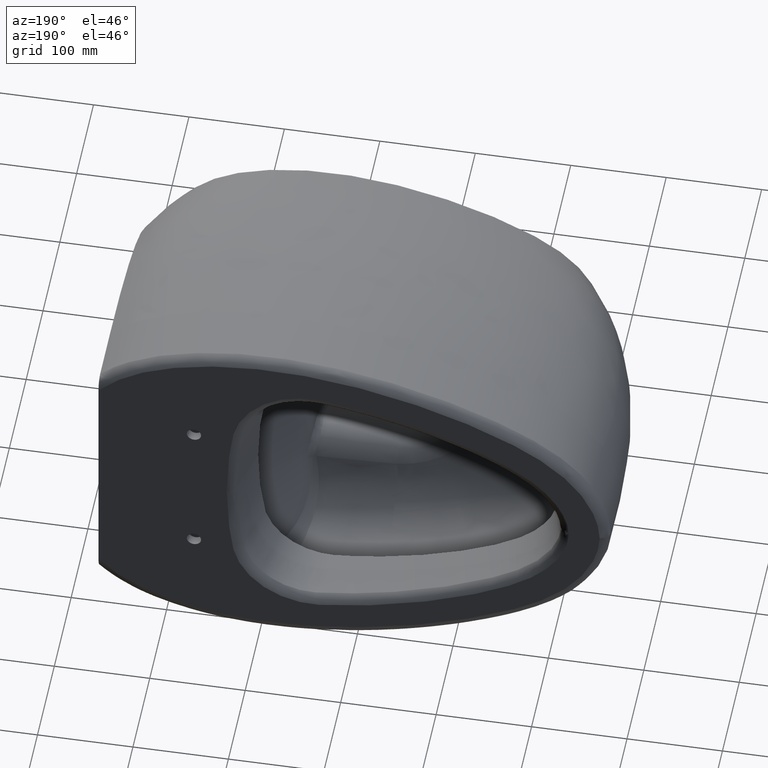
[diagram: clean part render]
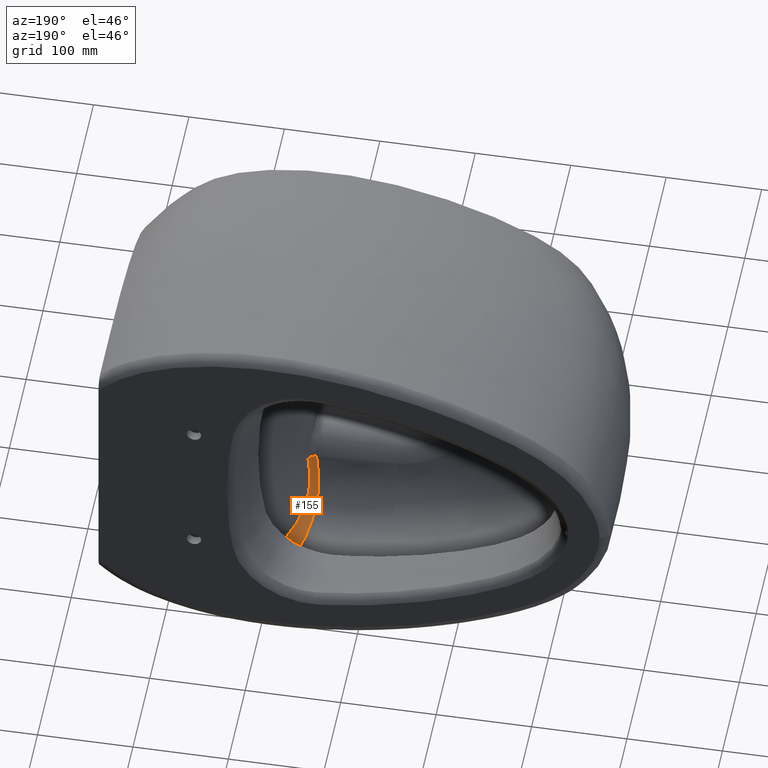
[diagram: same view with one face highlighted and labeled with its STEP entity id]
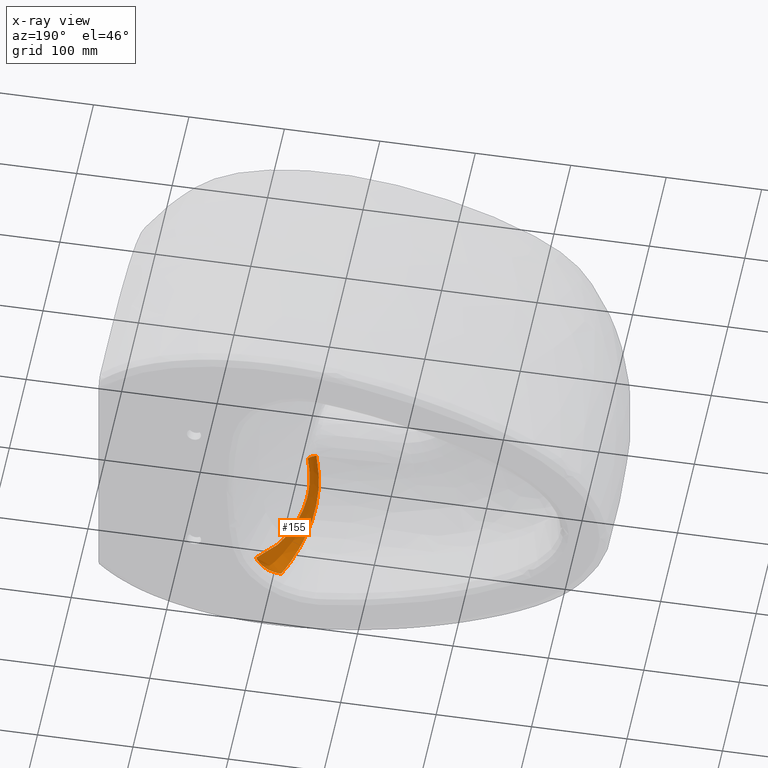
[diagram: x-ray of the same camera — body ghosted, the highlighted face saturated]
A machine part, auxiliary view. The second image highlights one B-rep face of the part: STEP entity #155.
The next image is the same camera in x-ray: the body ghosted, the highlighted face saturated — about 0% of this face is hidden behind the body in this view.
In plain terms, the highlighted face is a freeform B-spline surface patch.
Its self-contained STEP definition (entity closure, byte-faithful):
#56=(
BOUNDED_SURFACE()
B_SPLINE_SURFACE(2,3,((#5914,#5915,#5916,#5917,#5918,#5919,#5920,#5921,
#5922,#5923,#5924,#5925,#5926,#5927,#5928,#5929,#5930,#5931,#5932,#5933,
#5934,#5935,#5936,#5937,#5938,#5939,#5940,#5941,#5942,#5943,#5944,#5945,
#5946,#5947,#5948,#5949,#5950,#5951,#5952,#5953,#5954,#5955,#5956,#5957,
#5958,#5959,#5960,#5961,#5962,#5963,#5964,#5965),(#5966,#5967,#5968,#5969,
#5970,#5971,#5972,#5973,#5974,#5975,#5976,#5977,#5978,#5979,#5980,#5981,
#5982,#5983,#5984,#5985,#5986,#5987,#5988,#5989,#5990,#5991,#5992,#5993,
#5994,#5995,#5996,#5997,#5998,#5999,#6000,#6001,#6002,#6003,#6004,#6005,
#6006,#6007,#6008,#6009,#6010,#6011,#6012,#6013,#6014,#6015,#6016,#6017),
(#6018,#6019,#6020,#6021,#6022,#6023,#6024,#6025,#6026,#6027,#6028,#6029,
#6030,#6031,#6032,#6033,#6034,#6035,#6036,#6037,#6038,#6039,#6040,#6041,
#6042,#6043,#6044,#6045,#6046,#6047,#6048,#6049,#6050,#6051,#6052,#6053,
#6054,#6055,#6056,#6057,#6058,#6059,#6060,#6061,#6062,#6063,#6064,#6065,
#6066,#6067,#6068,#6069)),.UNSPECIFIED.,.F.,.F.,.F.)
B_SPLINE_SURFACE_WITH_KNOTS((3,3),(4,2,2,2,2,2,2,2,2,2,2,2,2,2,2,2,2,2,
2,2,2,2,2,2,2,4),(0.,1.),(0.,0.0624999999999999,0.125,0.1875,0.21875,0.25,
0.3125,0.375,0.5,0.5625,0.625,0.6875,0.75,0.78125,0.8125,0.828125,0.84375,
0.847656250000001,0.851562500000001,0.859375000000001,0.875,0.90625,0.921875,
0.9296875,0.9375,1.),.UNSPECIFIED.)
GEOMETRIC_REPRESENTATION_ITEM()
RATIONAL_B_SPLINE_SURFACE(((1.,1.,1.,1.,1.,1.,1.,1.,1.,1.,1.,1.,1.,1.,1.,
1.,1.,1.,1.,1.,1.,1.,1.,1.,1.,1.,1.,1.,1.,1.,1.,1.,1.,1.,1.,1.,1.,1.,1.,
1.,1.,1.,1.,1.,1.,1.,1.,1.,1.,1.,1.,1.),(0.900913455810286,0.901271913232834,
0.901648709694568,0.903392172796674,0.9045662922028,0.905476334422061,0.905422448573352,
0.905170451848339,0.905035277369264,0.904628442466434,0.904364018055682,
0.903342138113352,0.902365168722091,0.899846382907586,0.898282306393483,
0.892672106651107,0.888050196198863,0.878385485364541,0.874891562887349,
0.868278119323856,0.865004990802873,0.857959148766504,0.854166344666091,
0.845201301485231,0.840040747344434,0.830694107307595,0.827310904525442,
0.819850553024921,0.815750221331474,0.810211681002087,0.808444473069573,
0.806077462237,0.8053062780489,0.804100566853184,0.803856475120935,0.803360997477369,
0.803364595540939,0.803410571822871,0.803440734811776,0.803529843837233,
0.803587309828872,0.803754225577897,0.803859127994329,0.804005012262938,
0.804051514044002,0.804120606737675,0.804143458378928,0.804188827739932,
0.804228427208013,0.804543392325573,0.804799585432118,0.805035847182272),
(1.,1.,1.,1.,1.,1.,1.,1.,1.,1.,1.,1.,1.,1.,1.,1.,1.,1.,1.,1.,1.,1.,1.,1.,
1.,1.,1.,1.,1.,1.,1.,1.,1.,1.,1.,1.,1.,1.,1.,1.,1.,1.,1.,1.,1.,1.,1.,1.,
1.,1.,1.,1.)))
REPRESENTATION_ITEM('')
SURFACE()
);
#82=(
BOUNDED_CURVE()
B_SPLINE_CURVE(2,(#5911,#5912,#5913),.UNSPECIFIED.,.F.,.F.)
B_SPLINE_CURVE_WITH_KNOTS((3,3),(0.,1.),.UNSPECIFIED.)
CURVE()
GEOMETRIC_REPRESENTATION_ITEM()
RATIONAL_B_SPLINE_CURVE((1.,0.900913455810274,1.))
REPRESENTATION_ITEM('')
);
#155=ADVANCED_FACE('',(#252),#56,.T.);
#252=FACE_OUTER_BOUND('',#318,.T.);
#318=EDGE_LOOP('',(#480,#481,#482,#483,#484));
#480=ORIENTED_EDGE('',*,*,#834,.F.);
#481=ORIENTED_EDGE('',*,*,#835,.F.);
#482=ORIENTED_EDGE('',*,*,#836,.F.);
#483=ORIENTED_EDGE('',*,*,#799,.F.);
#484=ORIENTED_EDGE('',*,*,#802,.F.);
#697=VERTEX_POINT('',#2435);
#698=VERTEX_POINT('',#2498);
#699=VERTEX_POINT('',#2549);
#718=VERTEX_POINT('',#5684);
#719=VERTEX_POINT('',#5910);
#799=EDGE_CURVE('',#697,#698,#945,.T.);
#802=EDGE_CURVE('',#699,#697,#948,.T.);
#834=EDGE_CURVE('',#718,#699,#977,.T.);
#835=EDGE_CURVE('',#719,#718,#978,.T.);
#836=EDGE_CURVE('',#698,#719,#82,.T.);
#945=B_SPLINE_CURVE_WITH_KNOTS('',3,(#2436,#2437,#2438,#2439,#2440,#2441,
#2442,#2443,#2444,#2445,#2446,#2447,#2448,#2449,#2450,#2451,#2452,#2453,
#2454,#2455,#2456,#2457,#2458,#2459,#2460,#2461,#2462,#2463,#2464,#2465,
#2466,#2467,#2468,#2469,#2470,#2471,#2472,#2473,#2474,#2475,#2476,#2477,
#2478,#2479,#2480,#2481,#2482,#2483,#2484,#2485,#2486,#2487,#2488,#2489,
#2490,#2491,#2492,#2493,#2494,#2495,#2496,#2497),.UNSPECIFIED.,.F.,.F.,
(4,2,2,1,1,2,2,2,2,2,1,1,2,2,2,2,2,2,2,2,2,2,2,2,2,2,2,2,2,1,1,2,2,4),(0.,
0.0312500000000357,0.0468750000000536,0.0546875000000628,0.0585937500000666,
0.0605468750000687,0.0625000000000707,0.093750000000101,0.109375000000116,
0.117187500000121,0.121093750000123,0.123046875000126,0.124023437500127,
0.125000000000128,0.156250000000126,0.171875000000125,0.179687500000125,
0.187500000000125,0.250000000000117,0.31250000000011,0.375000000000102,
0.437500000000094,0.500000000000087,0.625000000000071,0.750000000000055,
0.78125000000005,0.796875000000048,0.812500000000045,0.84375000000004,0.859375000000037,
0.867187500000036,0.871093750000035,0.875000000000035,1.),.UNSPECIFIED.);
#948=B_SPLINE_CURVE_WITH_KNOTS('',3,(#2551,#2552,#2553,#2554,#2555,#2556),
 .UNSPECIFIED.,.F.,.F.,(4,2,4),(0.,0.5,1.),.UNSPECIFIED.);
#977=B_SPLINE_CURVE_WITH_KNOTS('',3,(#5685,#5686,#5687,#5688),
 .UNSPECIFIED.,.F.,.F.,(4,4),(0.,1.),.UNSPECIFIED.);
#978=B_SPLINE_CURVE_WITH_KNOTS('',3,(#5833,#5834,#5835,#5836,#5837,#5838,
#5839,#5840,#5841,#5842,#5843,#5844,#5845,#5846,#5847,#5848,#5849,#5850,
#5851,#5852,#5853,#5854,#5855,#5856,#5857,#5858,#5859,#5860,#5861,#5862,
#5863,#5864,#5865,#5866,#5867,#5868,#5869,#5870,#5871,#5872,#5873,#5874,
#5875,#5876,#5877,#5878,#5879,#5880,#5881,#5882,#5883,#5884,#5885,#5886,
#5887,#5888,#5889,#5890,#5891,#5892,#5893,#5894,#5895,#5896,#5897,#5898,
#5899,#5900,#5901,#5902,#5903,#5904,#5905,#5906,#5907,#5908,#5909),
 .UNSPECIFIED.,.F.,.F.,(4,2,2,2,1,2,2,2,2,2,2,1,2,2,2,2,2,2,1,1,2,2,2,2,
2,2,1,2,1,2,2,2,2,2,1,2,2,2,2,2,2,4),(0.,0.0624999999999826,0.0937499999999742,
0.10937499999997,0.117187499999968,0.121093749999967,0.124999999999966,
0.187499999999946,0.218749999999937,0.234374999999932,0.24218749999993,
0.246093749999929,0.248046874999928,0.249999999999928,0.374999999999921,
0.437499999999917,0.468749999999915,0.484374999999914,0.492187499999914,
0.496093749999914,0.498046874999914,0.499999999999914,0.624999999999939,
0.640624999999942,0.648437499999943,0.656249999999944,0.687499999999948,
0.718749999999953,0.734374999999955,0.742187499999957,0.749999999999958,
0.812499999999969,0.843749999999974,0.859374999999977,0.867187499999979,
0.87109374999998,0.874999999999981,0.906249999999987,0.92187499999999,0.929687499999991,
0.937499999999992,1.),.UNSPECIFIED.);
#2435=CARTESIAN_POINT('',(313.745117198476,357.360829095398,-193.652427417733));
#2436=CARTESIAN_POINT('',(313.745403071354,357.356655557904,-193.6525773771));
#2437=CARTESIAN_POINT('',(313.050852461703,356.470054695355,-193.749800259216));
#2438=CARTESIAN_POINT('',(312.266078997291,355.472190856287,-193.867613620823));
#2439=CARTESIAN_POINT('',(310.940323842667,353.79077543777,-194.075196785529));
#2440=CARTESIAN_POINT('',(310.473623193637,353.199511962085,-194.149534944423));
#2441=CARTESIAN_POINT('',(309.734614666349,352.264046784767,-194.26875426251));
#2442=CARTESIAN_POINT('',(309.355369870475,351.784170202383,-194.330291933627));
#2443=CARTESIAN_POINT('',(308.89547067737,351.202527000786,-194.405459038769));
#2444=CARTESIAN_POINT('',(308.694588853232,350.9485245639,-194.438396233351));
#2445=CARTESIAN_POINT('',(308.559822306208,350.778132741746,-194.460514956684));
#2446=CARTESIAN_POINT('',(308.524730529677,350.733764848443,-194.466275080063));
#2447=CARTESIAN_POINT('',(306.808662215323,348.564352952779,-194.748466321825));
#2448=CARTESIAN_POINT('',(305.535349143444,346.950533894176,-194.948683096957));
#2449=CARTESIAN_POINT('',(304.235717463079,345.302467031925,-195.151067938252));
#2450=CARTESIAN_POINT('',(303.90346118146,344.880858671037,-195.202205344063));
#2451=CARTESIAN_POINT('',(303.562394786416,344.447945667829,-195.254432971109));
#2452=CARTESIAN_POINT('',(303.474884958896,344.336836773598,-195.267762381266));
#2453=CARTESIAN_POINT('',(303.383268273982,344.220474625967,-195.281637308981));
#2454=CARTESIAN_POINT('',(303.347368313982,344.174863990217,-195.287044971077));
#2455=CARTESIAN_POINT('',(303.322869673706,344.143710044765,-195.290676817255));
#2456=CARTESIAN_POINT('',(303.316097945101,344.135088389516,-195.291659663138));
#2457=CARTESIAN_POINT('',(303.312412037413,344.130392009842,-195.292187414071));
#2458=CARTESIAN_POINT('',(303.33921356026,344.164659451964,-195.288591349917));
#2459=CARTESIAN_POINT('',(302.374145708261,342.93090083324,-195.418367008324));
#2460=CARTESIAN_POINT('',(301.481993601287,341.773990065612,-195.504821726707));
#2461=CARTESIAN_POINT('',(300.216207850257,340.106995945328,-195.575453287411));
#2462=CARTESIAN_POINT('',(299.806343392951,339.562715024147,-195.589155085579));
#2463=CARTESIAN_POINT('',(299.210422652882,338.76441191841,-195.594945969501));
#2464=CARTESIAN_POINT('',(299.014927788383,338.501329862667,-195.594415942926));
#2465=CARTESIAN_POINT('',(298.630351487672,337.981368691875,-195.588435230968));
#2466=CARTESIAN_POINT('',(298.460397483154,337.750604644371,-195.58379889506));
#2467=CARTESIAN_POINT('',(296.615908263619,335.23228638291,-195.505269858903));
#2468=CARTESIAN_POINT('',(294.976345511498,332.906395798683,-195.257968415976));
#2469=CARTESIAN_POINT('',(291.879005857628,328.348772783419,-194.453241863276));
#2470=CARTESIAN_POINT('',(290.379643069257,326.06046100819,-193.894460431438));
#2471=CARTESIAN_POINT('',(287.493461392885,321.488480768432,-192.462983510433));
#2472=CARTESIAN_POINT('',(286.120947287132,319.229306210704,-191.601383110371));
#2473=CARTESIAN_POINT('',(283.443851154272,314.642244755527,-189.518236792452));
#2474=CARTESIAN_POINT('',(282.187625657285,312.394782460056,-188.328907862514));
#2475=CARTESIAN_POINT('',(279.853704575856,308.020433519511,-185.652720694315));
#2476=CARTESIAN_POINT('',(278.786137222279,305.914695094199,-184.182710706804));
#2477=CARTESIAN_POINT('',(275.803752212243,299.687616643444,-179.221670818916));
#2478=CARTESIAN_POINT('',(274.217756675732,295.871468888133,-175.335114684794));
#2479=CARTESIAN_POINT('',(271.860975446021,289.032452829259,-166.342417724942));
#2480=CARTESIAN_POINT('',(271.133798328711,286.151064747374,-161.437958657344));
#2481=CARTESIAN_POINT('',(270.778478119791,283.2588273371,-154.739813412008));
#2482=CARTESIAN_POINT('',(270.738699189228,282.728070153038,-153.392014240409));
#2483=CARTESIAN_POINT('',(270.726051603989,282.003974411019,-151.358065052257));
#2484=CARTESIAN_POINT('',(270.72967149851,281.774614474304,-150.67804028638));
#2485=CARTESIAN_POINT('',(270.752587275895,281.339974993645,-149.313908569811));
#2486=CARTESIAN_POINT('',(270.773596513682,281.122494762151,-148.586473072761));
#2487=CARTESIAN_POINT('',(270.849855461691,280.579471420974,-146.658016851152));
#2488=CARTESIAN_POINT('',(270.927796574486,280.23429175928,-145.290657394328));
#2489=CARTESIAN_POINT('',(271.08328902,279.743433187955,-143.116419744897));
#2490=CARTESIAN_POINT('',(271.170676331331,279.50473436697,-141.998500775717));
#2491=CARTESIAN_POINT('',(271.289003538635,279.238422267146,-140.640222609731));
#2492=CARTESIAN_POINT('',(271.343168235091,279.126940157633,-140.046508426161));
#2493=CARTESIAN_POINT('',(271.380039081111,279.053212926447,-139.648120630735));
#2494=CARTESIAN_POINT('',(271.402553561022,279.009657793055,-139.408756129887));
#2495=CARTESIAN_POINT('',(271.913881010989,278.0434718902,-134.033331844004));
#2496=CARTESIAN_POINT('',(272.66738449996,277.325906305195,-128.006698465106));
#2497=CARTESIAN_POINT('',(273.61791154269,276.874430281565,-121.152778164875));
#2498=CARTESIAN_POINT('',(273.61791154269,276.874430281565,-121.152778164875));
#2549=CARTESIAN_POINT('',(301.024837865635,358.462558090501,-208.139923383448));
#2551=CARTESIAN_POINT('',(301.023971158494,358.458538436481,-208.139017360937));
#2552=CARTESIAN_POINT('',(303.945342118033,358.179038144237,-206.584443847952));
#2553=CARTESIAN_POINT('',(306.530652658749,357.930726277619,-204.567481636395));
#2554=CARTESIAN_POINT('',(310.932925415221,357.536464735216,-199.625815014079));
#2555=CARTESIAN_POINT('',(312.646182235469,357.401122195101,-196.790525389216));
#2556=CARTESIAN_POINT('',(313.750347929468,357.364105160607,-193.654230284909));
#5684=CARTESIAN_POINT('',(287.3393899231,358.72290925365,-211.418643377734));
#5685=CARTESIAN_POINT('',(287.3393899231,358.722909253649,-211.418643377741));
#5686=CARTESIAN_POINT('',(292.105796570239,358.547506596209,-211.425101980282));
#5687=CARTESIAN_POINT('',(296.763741420071,358.472448045215,-210.273798899263));
#5688=CARTESIAN_POINT('',(301.025383014397,358.466595905133,-208.141001591289));
#5833=CARTESIAN_POINT('',(265.415047292389,272.497147703208,-120.298662610969));
#5834=CARTESIAN_POINT('',(265.034454158486,272.68421909155,-123.152389810754));
#5835=CARTESIAN_POINT('',(264.662675813179,272.915792391692,-125.984357919928));
#5836=CARTESIAN_POINT('',(264.12782202751,273.347119948051,-130.192643831079));
#5837=CARTESIAN_POINT('',(263.952714850489,273.504774327317,-131.588398142826));
#5838=CARTESIAN_POINT('',(263.701039143377,273.765803756003,-133.669737698697));
#5839=CARTESIAN_POINT('',(263.619006092207,273.856901384154,-134.361468831915));
#5840=CARTESIAN_POINT('',(263.499604469249,274.000183228355,-135.396014505851));
#5841=CARTESIAN_POINT('',(263.440796946983,274.073481896722,-135.912516747357));
#5842=CARTESIAN_POINT('',(263.383433952501,274.149356986611,-136.427841880455));
#5843=CARTESIAN_POINT('',(263.345524508121,274.200522796766,-136.771127991238));
#5844=CARTESIAN_POINT('',(263.321509593569,274.233744096223,-136.99075262995));
#5845=CARTESIAN_POINT('',(263.093880763241,274.553736326412,-139.08624580271));
#5846=CARTESIAN_POINT('',(262.807696588032,274.959643088779,-141.532328538189));
#5847=CARTESIAN_POINT('',(262.37165154224,275.879850308414,-145.838844035719));
#5848=CARTESIAN_POINT('',(262.224973113251,276.238627861603,-147.380340952631));
#5849=CARTESIAN_POINT('',(262.034396411942,276.895349918612,-149.823050908621));
#5850=CARTESIAN_POINT('',(261.975925852544,277.134253065711,-150.659297294488));
#5851=CARTESIAN_POINT('',(261.898936870871,277.527840808931,-151.947410447143));
#5852=CARTESIAN_POINT('',(261.875063144325,277.664916187362,-152.382414696167));
#5853=CARTESIAN_POINT('',(261.84235698878,277.880071728858,-153.043552136755));
#5854=CARTESIAN_POINT('',(261.826780323976,277.99003585222,-153.376279617413));
#5855=CARTESIAN_POINT('',(261.812449910025,278.103721886726,-153.712288532086));
#5856=CARTESIAN_POINT('',(261.80318251013,278.180355966318,-153.93702916243));
#5857=CARTESIAN_POINT('',(261.797498216341,278.229860710521,-154.080856018535));
#5858=CARTESIAN_POINT('',(261.592803253316,280.076028818059,-159.412063138509));
#5859=CARTESIAN_POINT('',(261.678313137072,282.549660110275,-164.724191582561));
#5860=CARTESIAN_POINT('',(262.276312989259,287.160214026775,-172.380391909657));
#5861=CARTESIAN_POINT('',(262.556272364513,288.851295808827,-174.88252503548));
#5862=CARTESIAN_POINT('',(263.103621311934,291.611465141411,-178.522742098761));
#5863=CARTESIAN_POINT('',(263.307144076206,292.568645528596,-179.717461331417));
#5864=CARTESIAN_POINT('',(263.644151688045,294.058366914781,-181.476859648766));
#5865=CARTESIAN_POINT('',(263.761772801599,294.563928670221,-182.057876463373));
#5866=CARTESIAN_POINT('',(263.946128152666,295.335500891482,-182.920623534996));
#5867=CARTESIAN_POINT('',(264.04028655343,295.72459402247,-183.349802294869));
#5868=CARTESIAN_POINT('',(264.153601294292,296.184264064253,-183.846535299695));
#5869=CARTESIAN_POINT('',(264.202906429186,296.382486344194,-184.058554377948));
#5870=CARTESIAN_POINT('',(264.235941281363,296.514905085815,-184.199706249932));
#5871=CARTESIAN_POINT('',(264.258458142682,296.604829600375,-184.295148759118));
#5872=CARTESIAN_POINT('',(264.958190035621,299.393309247874,-187.247271858615));
#5873=CARTESIAN_POINT('',(266.039287032639,303.529488723179,-191.251592595655));
#5874=CARTESIAN_POINT('',(268.200565576989,310.198960391965,-195.954099746091));
#5875=CARTESIAN_POINT('',(268.453655750259,310.967766451838,-196.478779531406));
#5876=CARTESIAN_POINT('',(268.853669567283,312.163289613023,-197.265709833264));
#5877=CARTESIAN_POINT('',(268.950767024092,312.450988969202,-197.451379549505));
#5878=CARTESIAN_POINT('',(269.155612371925,313.054629127883,-197.837242259806));
#5879=CARTESIAN_POINT('',(269.259174828639,313.357795642881,-198.028439510367));
#5880=CARTESIAN_POINT('',(269.782444516983,314.879701084821,-198.975546442599));
#5881=CARTESIAN_POINT('',(270.654765484252,317.353996094591,-200.434186430839));
#5882=CARTESIAN_POINT('',(271.594836299819,319.900594015001,-201.775356997799));
#5883=CARTESIAN_POINT('',(272.324312873718,321.835233707252,-202.735526378945));
#5884=CARTESIAN_POINT('',(272.6951559059,322.808724799949,-203.2041814474));
#5885=CARTESIAN_POINT('',(273.074961693743,323.791004607221,-203.655357939828));
#5886=CARTESIAN_POINT('',(273.330134984107,324.44775789169,-203.95221933292));
#5887=CARTESIAN_POINT('',(273.447849231979,324.749406380505,-204.086579092281));
#5888=CARTESIAN_POINT('',(274.711467451103,327.970762039985,-205.495958940221));
#5889=CARTESIAN_POINT('',(275.838145648542,330.794429602683,-206.552173321561));
#5890=CARTESIAN_POINT('',(277.501571257891,334.941653339249,-207.878280073442));
#5891=CARTESIAN_POINT('',(278.051617409426,336.309362392492,-208.277279633732));
#5892=CARTESIAN_POINT('',(278.866455578094,338.335832214827,-208.815431613514));
#5893=CARTESIAN_POINT('',(279.136367119703,339.007145171767,-208.984754032756));
#5894=CARTESIAN_POINT('',(279.538269156255,340.007514675443,-209.224139575468));
#5895=CARTESIAN_POINT('',(279.73847921113,340.506049913307,-209.340182509224));
#5896=CARTESIAN_POINT('',(279.937503455738,341.002052337525,-209.450840578835));
#5897=CARTESIAN_POINT('',(280.069914724312,341.332151550381,-209.523425790261));
#5898=CARTESIAN_POINT('',(280.147586599171,341.525860496851,-209.565303578478));
#5899=CARTESIAN_POINT('',(280.636538900842,342.745662511351,-209.825692184961));
#5900=CARTESIAN_POINT('',(281.144272767695,344.028634485606,-210.077439280162));
#5901=CARTESIAN_POINT('',(282.01997578647,346.245676091147,-210.439555552767));
#5902=CARTESIAN_POINT('',(282.330875157907,347.033522979018,-210.557573152944));
#5903=CARTESIAN_POINT('',(282.825954917712,348.28888013035,-210.724023731086));
#5904=CARTESIAN_POINT('',(282.995767533073,348.719602599306,-210.777738450602));
#5905=CARTESIAN_POINT('',(283.344969532125,349.605730988586,-210.880472476145));
#5906=CARTESIAN_POINT('',(283.510986502387,350.027164626758,-210.926146132334));
#5907=CARTESIAN_POINT('',(285.288837993787,354.543628156006,-211.370916769933));
#5908=CARTESIAN_POINT('',(286.502573934421,357.285112071,-211.384337848423));
#5909=CARTESIAN_POINT('',(287.339390760334,358.722917962278,-211.418253530658));
#5910=CARTESIAN_POINT('',(265.415046823389,272.497162865586,-120.298661554475));
#5911=CARTESIAN_POINT('',(273.61791154269,276.874430281565,-121.152778164874));
#5912=CARTESIAN_POINT('',(270.545284921814,272.704651800103,-120.998336224721));
#5913=CARTESIAN_POINT('',(265.415046823389,272.497162865586,-120.298661554475));
#5914=CARTESIAN_POINT('',(265.41504682339,272.497162865586,-120.298661554475));
#5915=CARTESIAN_POINT('',(264.976052662869,272.713038474109,-123.590271523188));
#5916=CARTESIAN_POINT('',(264.536479299816,272.987087834199,-126.859601743246));
#5917=CARTESIAN_POINT('',(263.726855192323,273.705445253158,-133.421199574192));
#5918=CARTESIAN_POINT('',(263.346019548589,274.154309457494,-136.742129366445));
#5919=CARTESIAN_POINT('',(262.606814566365,275.315204206942,-143.38850555028));
#5920=CARTESIAN_POINT('',(262.252382290946,276.016533022266,-146.707976976089));
#5921=CARTESIAN_POINT('',(261.897626420886,277.445406391263,-151.759137077539));
#5922=CARTESIAN_POINT('',(261.814042577822,277.987529546264,-153.438196619469));
#5923=CARTESIAN_POINT('',(261.711050761619,279.171575032939,-156.710909456168));
#5924=CARTESIAN_POINT('',(261.688603597178,279.812450959686,-158.31530780113));
#5925=CARTESIAN_POINT('',(261.696775248047,281.881310227026,-163.072861068285));
#5926=CARTESIAN_POINT('',(261.804904020368,283.454519794113,-166.161255676475));
#5927=CARTESIAN_POINT('',(262.241766225571,286.999358342263,-172.168065130749));
#5928=CARTESIAN_POINT('',(262.573656128436,288.983983172361,-175.101703075232));
#5929=CARTESIAN_POINT('',(263.876938010284,295.405136070836,-183.425569091069));
#5930=CARTESIAN_POINT('',(265.148955748455,300.257572304922,-188.329301782921));
#5931=CARTESIAN_POINT('',(267.61012352653,308.414109783707,-194.773064699362));
#5932=CARTESIAN_POINT('',(268.533225269484,311.272220600113,-196.754821717179));
#5933=CARTESIAN_POINT('',(270.547305741117,317.067795379727,-200.308206753642));
#5934=CARTESIAN_POINT('',(271.63639602478,320.024704192731,-201.896774975715));
#5935=CARTESIAN_POINT('',(273.963198019002,326.102043856807,-204.739387857411));
#5936=CARTESIAN_POINT('',(275.198749695439,329.221053351826,-205.992446740463));
#5937=CARTESIAN_POINT('',(277.787294595217,335.67419505306,-208.152628473993));
#5938=CARTESIAN_POINT('',(279.139229307904,339.004162425907,-209.056572666846));
#5939=CARTESIAN_POINT('',(281.182412157722,344.111656875511,-210.096949245102));
#5940=CARTESIAN_POINT('',(281.868125579715,345.836369957498,-210.392105445027));
#5941=CARTESIAN_POINT('',(283.244362791436,349.341564651814,-210.870226420413));
#5942=CARTESIAN_POINT('',(283.93338018578,351.121489465251,-211.049460201896));
#5943=CARTESIAN_POINT('',(284.979115531284,353.703483052765,-211.230165124081));
#5944=CARTESIAN_POINT('',(285.329505466815,354.5520087665,-211.275514656987));
#5945=CARTESIAN_POINT('',(286.040460866652,356.109644612237,-211.344341049149));
#5946=CARTESIAN_POINT('',(286.400969677284,356.841018980843,-211.370500135949));
#5947=CARTESIAN_POINT('',(286.857072178592,357.79163380882,-211.396979673934));
#5948=CARTESIAN_POINT('',(286.948565085484,357.982395316469,-211.401886123005));
#5949=CARTESIAN_POINT('',(287.132073920825,358.3653232272,-211.410872374004));
#5950=CARTESIAN_POINT('',(287.223780206622,358.524274529096,-211.414244849871));
#5951=CARTESIAN_POINT('',(287.498285151809,358.995912291648,-211.424688633571));
#5952=CARTESIAN_POINT('',(287.680978393537,359.309997836166,-211.431648671864));
#5953=CARTESIAN_POINT('',(288.228246281263,360.251375508816,-211.452524546335));
#5954=CARTESIAN_POINT('',(288.59175724647,360.877458793229,-211.466428728739));
#5955=CARTESIAN_POINT('',(289.678407163922,362.751239735324,-211.508103299229));
#5956=CARTESIAN_POINT('',(290.4001028754,363.997664641192,-211.535907033765));
#5957=CARTESIAN_POINT('',(291.470735089597,365.852452292218,-211.577404538376));
#5958=CARTESIAN_POINT('',(291.825023977056,366.467449402844,-211.591184975148));
#5959=CARTESIAN_POINT('',(292.359042725404,367.393461010796,-211.611963774844));
#5960=CARTESIAN_POINT('',(292.537299775829,367.702481603989,-211.618902799358));
#5961=CARTESIAN_POINT('',(292.894354055942,368.321263507277,-211.632807043782));
#5962=CARTESIAN_POINT('',(293.119610376122,368.691894647198,-211.641118493809));
#5963=CARTESIAN_POINT('',(295.044394141211,371.8933796743,-211.712969082756));
#5964=CARTESIAN_POINT('',(296.755066617274,374.739329206361,-211.777003086571));
#5965=CARTESIAN_POINT('',(298.465669942764,377.585354737006,-211.841182599271));
#5966=CARTESIAN_POINT('',(270.545284921814,272.704651800103,-120.998336224722));
#5967=CARTESIAN_POINT('',(270.097854044693,272.928050993454,-124.273677655235));
#5968=CARTESIAN_POINT('',(269.663512964113,273.210422239359,-127.521562042738));
#5969=CARTESIAN_POINT('',(268.863559754307,273.962754575604,-134.013683539884));
#5970=CARTESIAN_POINT('',(268.492452648167,274.432934536064,-137.283177042483));
#5971=CARTESIAN_POINT('',(267.845117508515,275.590762026813,-143.792325473568));
#5972=CARTESIAN_POINT('',(267.567593047392,276.274021517542,-147.024948963646));
#5973=CARTESIAN_POINT('',(267.348026487506,277.625637132287,-151.844895473441));
#5974=CARTESIAN_POINT('',(267.312563137505,278.132296380665,-153.432141425293));
#5975=CARTESIAN_POINT('',(267.311926081553,279.243780252926,-156.551928082832));
#5976=CARTESIAN_POINT('',(267.344118798372,279.846904551704,-158.089749206224));
#5977=CARTESIAN_POINT('',(267.528315788236,281.784290844653,-162.642663179948));
#5978=CARTESIAN_POINT('',(267.76983617984,283.248832305292,-165.595826601472));
#5979=CARTESIAN_POINT('',(268.500961776947,286.521190166678,-171.329743976215));
#5980=CARTESIAN_POINT('',(268.995483383161,288.343963109578,-174.129059175683));
#5981=CARTESIAN_POINT('',(270.83246606815,294.201367146595,-182.084211728571));
#5982=CARTESIAN_POINT('',(272.514276686342,298.587172737107,-186.761035123856));
#5983=CARTESIAN_POINT('',(275.684724762916,305.759620083823,-192.949347118854));
#5984=CARTESIAN_POINT('',(276.865419606846,308.273072345651,-194.876105625081));
#5985=CARTESIAN_POINT('',(279.392890226964,313.36512570853,-198.351577265507));
#5986=CARTESIAN_POINT('',(280.7439133542,315.956541190568,-199.915522257582));
#5987=CARTESIAN_POINT('',(283.621723017435,321.246426745155,-202.75866962151));
#5988=CARTESIAN_POINT('',(285.150404572932,323.946806092139,-204.036217917103));
#5989=CARTESIAN_POINT('',(288.387993161684,329.464985724559,-206.340262712972));
#5990=CARTESIAN_POINT('',(290.102438081201,332.288742571987,-207.363717669624));
#5991=CARTESIAN_POINT('',(292.756989667785,336.529719959556,-208.703385464526));
#5992=CARTESIAN_POINT('',(293.664703302419,337.958383687291,-209.121199841514));
#5993=CARTESIAN_POINT('',(295.520328357461,340.83854240792,-209.902409996789));
#5994=CARTESIAN_POINT('',(296.469386285243,342.290806912967,-210.264515387468));
#5995=CARTESIAN_POINT('',(297.89288364623,344.417094425593,-210.709441487376));
#5996=CARTESIAN_POINT('',(298.369212260901,345.120189876588,-210.842543966872));
#5997=CARTESIAN_POINT('',(299.295233800355,346.450614244073,-211.029170267594));
#5998=CARTESIAN_POINT('',(299.74951573416,347.089463629135,-211.093455181981));
#5999=CARTESIAN_POINT('',(300.330231398908,347.908720066279,-211.181701648397));
#6000=CARTESIAN_POINT('',(300.446849340226,348.073113049238,-211.199206985929));
#6001=CARTESIAN_POINT('',(300.680860657365,348.402751335736,-211.233937478757));
#6002=CARTESIAN_POINT('',(300.789411332108,348.548836394069,-211.236320132804));
#6003=CARTESIAN_POINT('',(301.1134042779,348.984042056049,-211.241765822029));
#6004=CARTESIAN_POINT('',(301.329135746761,349.273814582593,-211.2453980817));
#6005=CARTESIAN_POINT('',(301.975609496742,350.142134396129,-211.256300068022));
#6006=CARTESIAN_POINT('',(302.405435305318,350.719419178384,-211.263573844876));
#6007=CARTESIAN_POINT('',(303.691352049743,352.446367793449,-211.285406939546));
#6008=CARTESIAN_POINT('',(304.546477177965,353.594628002243,-211.3000008756));
#6009=CARTESIAN_POINT('',(305.817989998833,355.301736574362,-211.321870083914));
#6010=CARTESIAN_POINT('',(306.239340562071,355.867382788788,-211.329150857995));
#6011=CARTESIAN_POINT('',(306.874000779063,356.719361445914,-211.340108767628));
#6012=CARTESIAN_POINT('',(307.085808011922,357.003689189559,-211.343765945008));
#6013=CARTESIAN_POINT('',(307.509974927255,357.573074931574,-211.351089514183));
#6014=CARTESIAN_POINT('',(307.767881271322,357.919630577465,-211.355124365129));
#6015=CARTESIAN_POINT('',(309.987977717928,360.902114554287,-211.390633070451));
#6016=CARTESIAN_POINT('',(311.962322905319,363.553978290395,-211.422330156897));
#6017=CARTESIAN_POINT('',(313.937378771536,366.206313252938,-211.454132213037));
#6018=CARTESIAN_POINT('',(273.61791154269,276.874430281565,-121.152778164875));
#6019=CARTESIAN_POINT('',(273.171458057985,277.086466576011,-124.371929049933));
#6020=CARTESIAN_POINT('',(272.747381769662,277.366224241442,-127.554705732294));
#6021=CARTESIAN_POINT('',(271.971868317402,278.101285564723,-133.872592574892));
#6022=CARTESIAN_POINT('',(271.618602530891,278.560344925543,-137.027825529396));
#6023=CARTESIAN_POINT('',(271.051800833152,279.727059923463,-143.241898014286));
#6024=CARTESIAN_POINT('',(270.836033141838,280.426630773841,-146.283982503625));
#6025=CARTESIAN_POINT('',(270.717397103692,281.749365274543,-150.660186917992));
#6026=CARTESIAN_POINT('',(270.715964703104,282.236081787954,-152.07374988473));
#6027=CARTESIAN_POINT('',(270.783221026856,283.318021542221,-154.888795222706));
#6028=CARTESIAN_POINT('',(270.85006781658,283.909574962118,-156.286168175956));
#6029=CARTESIAN_POINT('',(271.141426156927,285.803305439023,-160.395578514607));
#6030=CARTESIAN_POINT('',(271.457911874993,287.230585790621,-163.037870453526));
#6031=CARTESIAN_POINT('',(272.341478761434,290.401610710895,-168.109892700515));
#6032=CARTESIAN_POINT('',(272.912493337936,292.156882804564,-170.554201314941));
#6033=CARTESIAN_POINT('',(274.973370695499,297.755189872595,-177.372697658218));
#6034=CARTESIAN_POINT('',(276.786493879814,301.890612995277,-181.226738955603));
#6035=CARTESIAN_POINT('',(280.143797450201,308.583532171083,-186.033351202568));
#6036=CARTESIAN_POINT('',(281.376734382761,310.908785334861,-187.477226271835));
#6037=CARTESIAN_POINT('',(283.979772210496,315.583552568949,-189.988326492387));
#6038=CARTESIAN_POINT('',(285.352713846278,317.940506692485,-191.063726348709));
#6039=CARTESIAN_POINT('',(288.243252142129,322.699898578911,-192.886513179743));
#6040=CARTESIAN_POINT('',(289.759291487777,325.099341507608,-193.631881764398));
#6041=CARTESIAN_POINT('',(292.937028170553,329.933568054608,-194.786445842961));
#6042=CARTESIAN_POINT('',(294.597312108201,332.364953575933,-195.192564347745));
#6043=CARTESIAN_POINT('',(297.144303940583,335.948501984147,-195.517190171853));
#6044=CARTESIAN_POINT('',(298.00468134473,337.135604789522,-195.579040806474));
#6045=CARTESIAN_POINT('',(299.747140945442,339.492252329334,-195.607721944911));
#6046=CARTESIAN_POINT('',(300.629696596422,340.661605373226,-195.572866691661));
#6047=CARTESIAN_POINT('',(301.965715926325,342.400806664381,-195.456993485497));
#6048=CARTESIAN_POINT('',(302.413220130455,342.97805639317,-195.407374437949));
#6049=CARTESIAN_POINT('',(303.309808134158,344.128001763092,-195.294462005868));
#6050=CARTESIAN_POINT('',(303.758589639526,344.70077880371,-195.232163426246));
#6051=CARTESIAN_POINT('',(304.320205987046,345.414210011322,-195.147293329243));
#6052=CARTESIAN_POINT('',(304.432568004113,345.556767590081,-195.129947492519));
#6053=CARTESIAN_POINT('',(304.657381980718,345.841626477784,-195.094479353239));
#6054=CARTESIAN_POINT('',(304.769837228573,345.983926043557,-195.076344402518));
#6055=CARTESIAN_POINT('',(305.106890332251,346.410574972332,-195.022277188808));
#6056=CARTESIAN_POINT('',(305.331329367708,346.694635504906,-194.986180873197));
#6057=CARTESIAN_POINT('',(306.003963142454,347.545849031527,-194.877749317671));
#6058=CARTESIAN_POINT('',(306.451229378743,348.111700529544,-194.805263658672));
#6059=CARTESIAN_POINT('',(307.789600644236,349.804473449971,-194.587282569222));
#6060=CARTESIAN_POINT('',(308.679653659477,350.929843558865,-194.441338274644));
#6061=CARTESIAN_POINT('',(310.003541740721,352.602576199308,-194.221510045265));
#6062=CARTESIAN_POINT('',(310.442384990721,353.156801155951,-194.148063539694));
#6063=CARTESIAN_POINT('',(311.10323163817,353.991640145608,-194.03787027534));
#6064=CARTESIAN_POINT('',(311.323768797825,354.270264946402,-194.00112970927));
#6065=CARTESIAN_POINT('',(311.765384420653,354.828250295034,-193.927636249684));
#6066=CARTESIAN_POINT('',(312.031704230066,355.169126549286,-193.892311090724));
#6067=CARTESIAN_POINT('',(314.328808771984,358.101345356273,-193.571110461447));
#6068=CARTESIAN_POINT('',(316.370618401721,360.707786833935,-193.284947687065));
#6069=CARTESIAN_POINT('',(318.412328445002,363.314292810872,-192.998314421278));